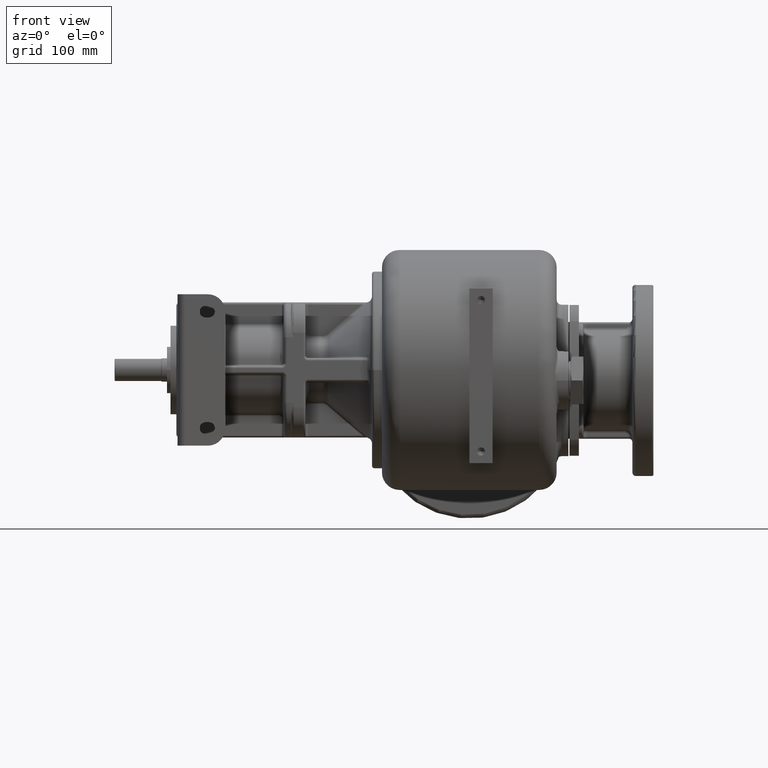
[diagram: clean part render]
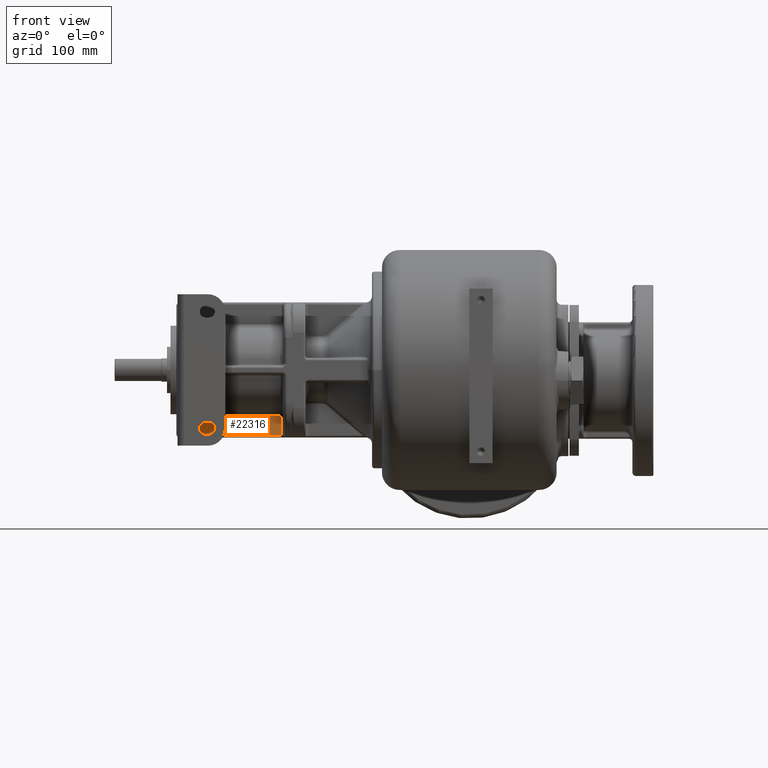
[diagram: same view with one face highlighted and labeled with its STEP entity id]
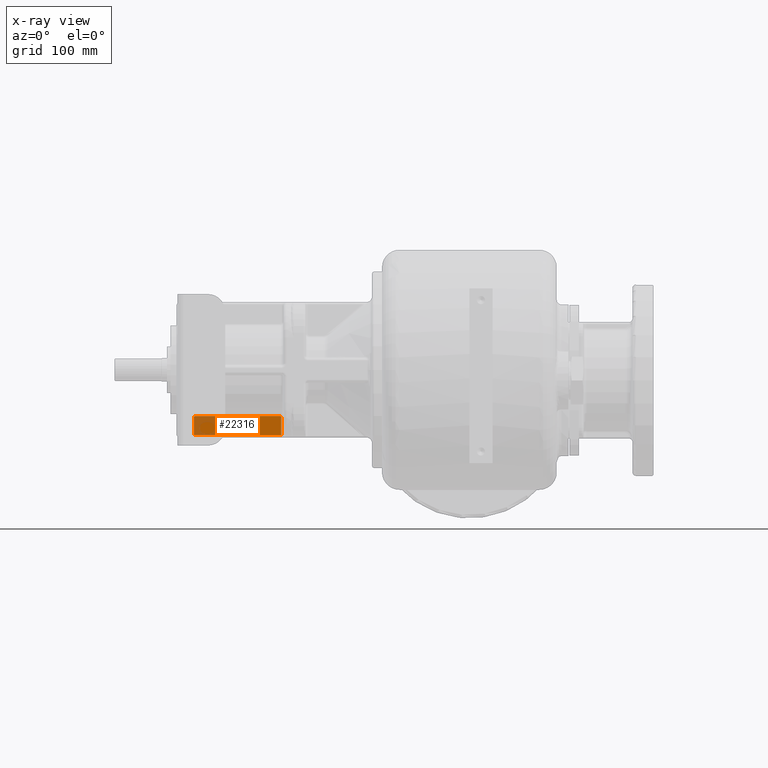
[diagram: x-ray of the same camera — body ghosted, the highlighted face saturated]
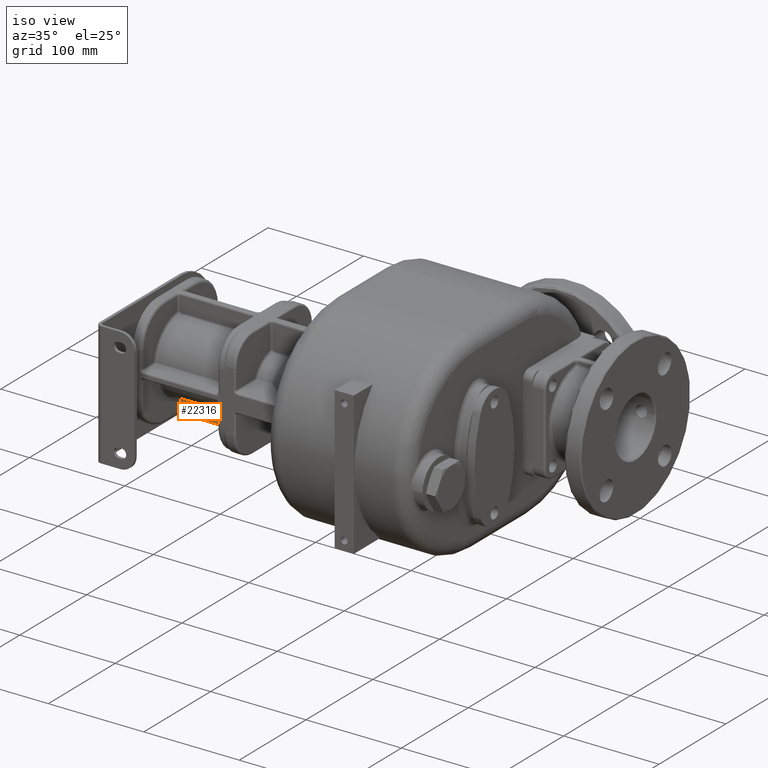
[diagram: same view with one face highlighted and labeled with its STEP entity id]
A machine part, front view. The second image highlights one B-rep face of the part: STEP entity #22316.
The next image is the same camera in x-ray: the body ghosted, the highlighted face saturated — about 27% of this face is hidden behind the body in this view.
A second angle (iso view) of the same face is appended — the face is thin or edge-on in the first view.
In plain terms, the highlighted planar face has unit normal (0, -1, 0).
Its self-contained STEP definition (entity closure, byte-faithful):
#4041=CARTESIAN_POINT('',(-1.665E2,1.065E2,-5.5E1));
#4042=DIRECTION('',(0.E0,1.E0,0.E0));
#4043=DIRECTION('',(-9.797958972699E-1,0.E0,-1.999999992327E-1));
#4044=AXIS2_PLACEMENT_3D('',#4041,#4042,#4043);
#4046=DIRECTION('',(1.E0,-7.789680241806E-12,0.E0));
#4047=VECTOR('',#4046,7.520204101911E1);
#4048=CARTESIAN_POINT('',(-2.466010205096E2,1.064999999880E2,-5.6E1));
#4049=LINE('',#4048,#4047);
#4050=CARTESIAN_POINT('',(-2.515E2,1.065E2,-5.5E1));
#4051=DIRECTION('',(0.E0,1.E0,0.E0));
#4052=DIRECTION('',(1.E0,0.E0,0.E0));
#4053=AXIS2_PLACEMENT_3D('',#4050,#4051,#4052);
#4055=DIRECTION('',(0.E0,0.E0,-1.E0));
#4056=VECTOR('',#4055,1.437057716383E1);
#4057=CARTESIAN_POINT('',(-2.465E2,1.065E2,-4.062942283617E1));
#4058=LINE('',#4057,#4056);
#4059=CARTESIAN_POINT('',(-2.455E2,1.065E2,-3.962007067132E1));
#4060=CARTESIAN_POINT('',(-2.455216836415E2,1.065E2,-3.962007075829E1));
#4061=CARTESIAN_POINT('',(-2.455649652852E2,1.065E2,-3.962149053297E1));
#4062=CARTESIAN_POINT('',(-2.456297943927E2,1.065E2,-3.962789122695E1));
#4063=CARTESIAN_POINT('',(-2.456940394614E2,1.065E2,-3.963853248993E1));
#4064=CARTESIAN_POINT('',(-2.457575028029E2,1.065E2,-3.965337745855E1));
#4065=CARTESIAN_POINT('',(-2.458198931852E2,1.065E2,-3.967236643295E1));
#4066=CARTESIAN_POINT('',(-2.458809591159E2,1.065E2,-3.969542715259E1));
#4067=CARTESIAN_POINT('',(-2.459404409046E2,1.065E2,-3.972246939124E1));
#4068=CARTESIAN_POINT('',(-2.459980874562E2,1.065E2,-3.975338715944E1));
#4069=CARTESIAN_POINT('',(-2.460536524810E2,1.065E2,-3.978805802441E1));
#4070=CARTESIAN_POINT('',(-2.461068968505E2,1.065E2,-3.982634344228E1));
#4071=CARTESIAN_POINT('',(-2.461575893705E2,1.065E2,-3.986808894322E1));
#4072=CARTESIAN_POINT('',(-2.462055078055E2,1.065E2,-3.991312425182E1));
#4073=CARTESIAN_POINT('',(-2.462504403668E2,1.065E2,-3.996126397140E1));
#4074=CARTESIAN_POINT('',(-2.462921866742E2,1.065E2,-4.001230796104E1));
#4075=CARTESIAN_POINT('',(-2.463305587720E2,1.065E2,-4.006604170315E1));
#4076=CARTESIAN_POINT('',(-2.463653825978E2,1.065E2,-4.012223737701E1));
#4077=CARTESIAN_POINT('',(-2.463964989952E2,1.065E2,-4.018065471864E1));
#4078=CARTESIAN_POINT('',(-2.464237647158E2,1.065E2,-4.024104161070E1));
#4079=CARTESIAN_POINT('',(-2.464470537487E2,1.065E2,-4.030313680392E1));
#4080=CARTESIAN_POINT('',(-2.464662573060E2,1.065E2,-4.036666608180E1));
#4081=CARTESIAN_POINT('',(-2.464812869631E2,1.065E2,-4.043135958103E1));
#4082=CARTESIAN_POINT('',(-2.464920700385E2,1.065E2,-4.049690630308E1));
#4083=CARTESIAN_POINT('',(-2.464985595061E2,1.065E2,-4.056308148008E1));
#4084=CARTESIAN_POINT('',(-2.464999999156E2,1.065E2,-4.060727702370E1));
#4085=CARTESIAN_POINT('',(-2.465E2,1.065E2,-4.062942283617E1));
#4087=DIRECTION('',(-1.E0,0.E0,0.E0));
#4088=VECTOR('',#4087,7.3E1);
#4089=CARTESIAN_POINT('',(-1.725E2,1.065E2,-3.962007067132E1));
#4090=LINE('',#4089,#4088);
#4091=CARTESIAN_POINT('',(-1.715E2,1.065E2,-4.062942283617E1));
#4092=CARTESIAN_POINT('',(-1.715000000856E2,1.065E2,-4.060727699025E1));
#4093=CARTESIAN_POINT('',(-1.715014404949E2,1.065E2,-4.056308138344E1));
#4094=CARTESIAN_POINT('',(-1.715079300004E2,1.065E2,-4.049690599927E1));
#4095=CARTESIAN_POINT('',(-1.715187130883E2,1.065E2,-4.043135932815E1));
#4096=CARTESIAN_POINT('',(-1.715337427624E2,1.065E2,-4.036666582522E1));
#4097=CARTESIAN_POINT('',(-1.715529463375E2,1.065E2,-4.030313654999E1));
#4098=CARTESIAN_POINT('',(-1.715762353862E2,1.065E2,-4.024104136418E1));
#4099=CARTESIAN_POINT('',(-1.716035011235E2,1.065E2,-4.018065447752E1));
#4100=CARTESIAN_POINT('',(-1.716346175365E2,1.065E2,-4.012223714410E1));
#4101=CARTESIAN_POINT('',(-1.716694413777E2,1.065E2,-4.006604147866E1));
#4102=CARTESIAN_POINT('',(-1.717078134899E2,1.065E2,-4.001230774664E1));
#4103=CARTESIAN_POINT('',(-1.717495598125E2,1.065E2,-3.996126376660E1));
#4104=CARTESIAN_POINT('',(-1.717944923828E2,1.065E2,-3.991312406335E1));
#4105=CARTESIAN_POINT('',(-1.718424108257E2,1.065E2,-3.986808877077E1));
#4106=CARTESIAN_POINT('',(-1.718931033583E2,1.065E2,-3.982634328157E1));
#4107=CARTESIAN_POINT('',(-1.719463477380E2,1.065E2,-3.978805787766E1));
#4108=CARTESIAN_POINT('',(-1.720019127724E2,1.065E2,-3.975338702701E1));
#4109=CARTESIAN_POINT('',(-1.720595593332E2,1.065E2,-3.972246927358E1));
#4110=CARTESIAN_POINT('',(-1.721190411286E2,1.065E2,-3.969542705090E1));
#4111=CARTESIAN_POINT('',(-1.721801070683E2,1.065E2,-3.967236634647E1));
#4112=CARTESIAN_POINT('',(-1.722424974538E2,1.065E2,-3.965337738969E1));
#4113=CARTESIAN_POINT('',(-1.723059607954E2,1.065E2,-3.963853243755E1));
#4114=CARTESIAN_POINT('',(-1.723702059139E2,1.065E2,-3.962789118743E1));
#4115=CARTESIAN_POINT('',(-1.724350348114E2,1.065E2,-3.962149053212E1));
#4116=CARTESIAN_POINT('',(-1.724783163918E2,1.065E2,-3.962007075709E1));
#4117=CARTESIAN_POINT('',(-1.725E2,1.065E2,-3.962007067132E1));
#4119=DIRECTION('',(0.E0,0.E0,1.E0));
#4120=VECTOR('',#4119,1.437057716383E1);
#4121=CARTESIAN_POINT('',(-1.715E2,1.065E2,-5.5E1));
#4122=LINE('',#4121,#4120);
#17229=CARTESIAN_POINT('',(-2.465E2,1.065E2,-4.062942283617E1));
#17230=CARTESIAN_POINT('',(-2.465E2,1.065E2,-5.5E1));
#17231=VERTEX_POINT('',#17229);
#17232=VERTEX_POINT('',#17230);
#17236=CARTESIAN_POINT('',(-1.725E2,1.065E2,-3.962007067132E1));
#17237=CARTESIAN_POINT('',(-2.455E2,1.065E2,-3.962007067132E1));
#17238=VERTEX_POINT('',#17236);
#17239=VERTEX_POINT('',#17237);
#17243=CARTESIAN_POINT('',(-1.715E2,1.065E2,-5.5E1));
#17244=CARTESIAN_POINT('',(-1.715E2,1.065E2,-4.062942283617E1));
#17245=VERTEX_POINT('',#17243);
#17246=VERTEX_POINT('',#17244);
#17317=CARTESIAN_POINT('',(-1.713989794863E2,1.065E2,-5.599999999616E1));
#17318=VERTEX_POINT('',#17317);
#17341=CARTESIAN_POINT('',(-2.466010205137E2,1.065E2,-5.599999999619E1));
#17342=VERTEX_POINT('',#17341);
#22294=CARTESIAN_POINT('',(-2.125E2,1.065E2,-1.226647859949E-14));
#22295=DIRECTION('',(0.E0,-1.E0,0.E0));
#22296=DIRECTION('',(1.E0,0.E0,0.E0));
#22297=AXIS2_PLACEMENT_3D('',#22294,#22295,#22296);
#22298=PLANE('',#22297);
#22299=ORIENTED_EDGE('',*,*,#22284,.F.);
#22301=ORIENTED_EDGE('',*,*,#22300,.F.);
#22303=ORIENTED_EDGE('',*,*,#22302,.F.);
#22305=ORIENTED_EDGE('',*,*,#22304,.F.);
#22307=ORIENTED_EDGE('',*,*,#22306,.F.);
#22309=ORIENTED_EDGE('',*,*,#22308,.F.);
#22311=ORIENTED_EDGE('',*,*,#22310,.F.);
#22313=ORIENTED_EDGE('',*,*,#22312,.F.);
#22314=EDGE_LOOP('',(#22299,#22301,#22303,#22305,#22307,#22309,#22311,#22313));
#22315=FACE_OUTER_BOUND('',#22314,.F.);
#22316=ADVANCED_FACE('',(#22315),#22298,.T.);
#4045=CIRCLE('',#4044,5.E0);
#4054=CIRCLE('',#4053,5.E0);
#4086=B_SPLINE_CURVE_WITH_KNOTS('',3,(#4059,#4060,#4061,#4062,#4063,#4064,#4065,
#4066,#4067,#4068,#4069,#4070,#4071,#4072,#4073,#4074,#4075,#4076,#4077,#4078,
#4079,#4080,#4081,#4082,#4083,#4084,#4085),.UNSPECIFIED.,.F.,.F.,(4,1,1,1,1,1,1,
1,1,1,1,1,1,1,1,1,1,1,1,1,1,1,1,1,4),(0.E0,4.166666666667E-2,8.333333333333E-2,
1.25E-1,1.666666666667E-1,2.083333333333E-1,2.5E-1,2.916666666667E-1,
3.333333333333E-1,3.75E-1,4.166666666667E-1,4.583333333333E-1,5.E-1,
5.416666666667E-1,5.833333333333E-1,6.25E-1,6.666666666667E-1,7.083333333333E-1,
7.5E-1,7.916666666667E-1,8.333333333333E-1,8.75E-1,9.166666666667E-1,
9.583333333333E-1,1.E0),.UNSPECIFIED.);
#4118=B_SPLINE_CURVE_WITH_KNOTS('',3,(#4091,#4092,#4093,#4094,#4095,#4096,#4097,
#4098,#4099,#4100,#4101,#4102,#4103,#4104,#4105,#4106,#4107,#4108,#4109,#4110,
#4111,#4112,#4113,#4114,#4115,#4116,#4117),.UNSPECIFIED.,.F.,.F.,(4,1,1,1,1,1,1,
1,1,1,1,1,1,1,1,1,1,1,1,1,1,1,1,1,4),(0.E0,4.166666666667E-2,8.333333333333E-2,
1.25E-1,1.666666666667E-1,2.083333333333E-1,2.5E-1,2.916666666667E-1,
3.333333333333E-1,3.75E-1,4.166666666667E-1,4.583333333333E-1,5.E-1,
5.416666666667E-1,5.833333333333E-1,6.25E-1,6.666666666667E-1,7.083333333333E-1,
7.5E-1,7.916666666667E-1,8.333333333333E-1,8.75E-1,9.166666666667E-1,
9.583333333333E-1,1.E0),.UNSPECIFIED.);
#22284=EDGE_CURVE('',#17318,#17245,#4045,.T.);
#22300=EDGE_CURVE('',#17342,#17318,#4049,.T.);
#22302=EDGE_CURVE('',#17232,#17342,#4054,.T.);
#22304=EDGE_CURVE('',#17231,#17232,#4058,.T.);
#22306=EDGE_CURVE('',#17239,#17231,#4086,.T.);
#22308=EDGE_CURVE('',#17238,#17239,#4090,.T.);
#22310=EDGE_CURVE('',#17246,#17238,#4118,.T.);
#22312=EDGE_CURVE('',#17245,#17246,#4122,.T.);